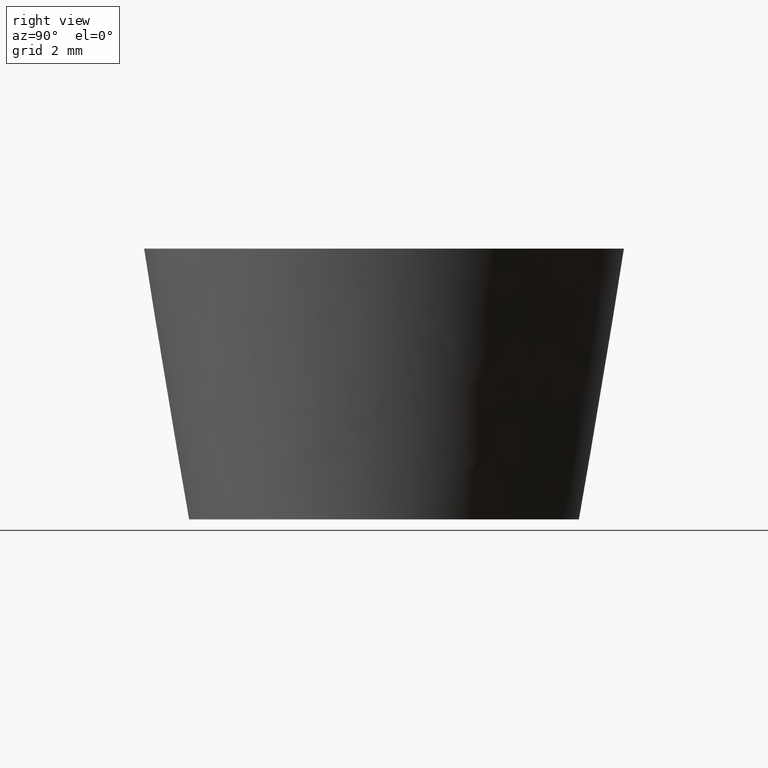
[diagram: clean part render]
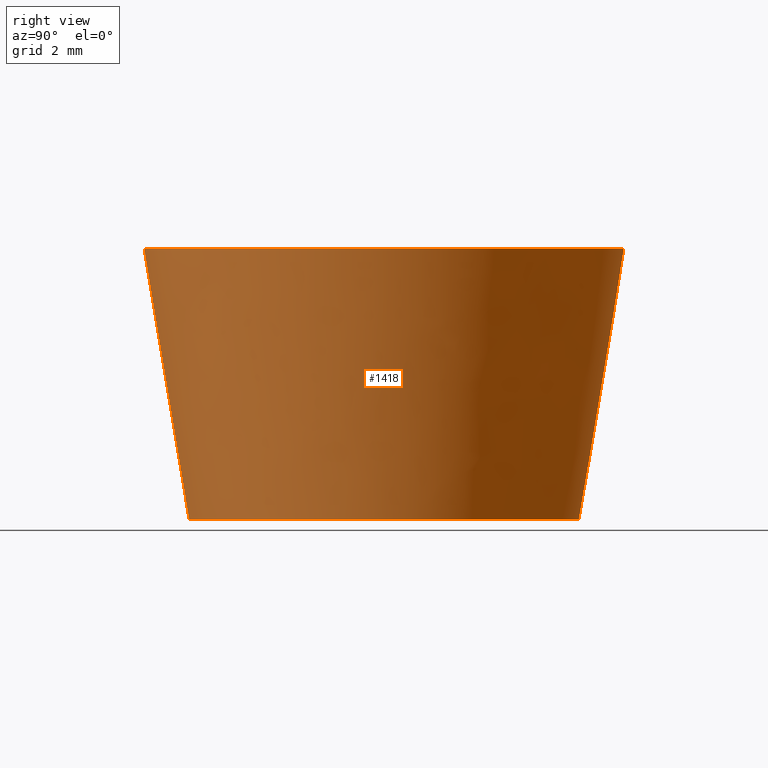
[diagram: same view with one face highlighted and labeled with its STEP entity id]
A machine part, right view. The second image highlights one B-rep face of the part: STEP entity #1418.
In plain terms, the highlighted face is a freeform B-spline surface patch.
Its self-contained STEP definition (entity closure, byte-faithful):
#1257=CARTESIAN_POINT('',(-0.509981792838668,6.479962686144105,-0.000000995606649));
#1258=VERTEX_POINT('',#1257);
#1272=CARTESIAN_POINT('',(0.509981792838667,-6.479962686144106,-0.000000995606649));
#1273=VERTEX_POINT('',#1272);
#1289=CARTESIAN_POINT('',(0.627668152986764,-7.975338694635298,8.999997976665732));
#1290=VERTEX_POINT('',#1289);
#1291=CARTESIAN_POINT('',(0.509981792838667,-6.479962686144106,-0.000000995606649));
#1292=CARTESIAN_POINT('',(0.627668152986764,-7.975338694635298,8.999997976665732));
#1293=QUASI_UNIFORM_CURVE('',1,(#1291,#1292),.UNSPECIFIED.,.F.,.U.);
#1294=EDGE_CURVE('',#1273,#1290,#1293,.T.);
#1313=CARTESIAN_POINT('',(-0.627668152986764,7.975338694635298,8.999997976665730));
#1314=VERTEX_POINT('',#1313);
#1328=CARTESIAN_POINT('',(-0.509981792838668,6.479962686144105,-0.000000995606649));
#1329=CARTESIAN_POINT('',(-0.627668152986764,7.975338694635298,8.999997976665730));
#1330=QUASI_UNIFORM_CURVE('',1,(#1328,#1329),.UNSPECIFIED.,.F.,.U.);
#1331=EDGE_CURVE('',#1258,#1314,#1330,.T.);
#1336=CARTESIAN_POINT('',(0.507041906141202,-6.442578269250335,-0.225000000000000));
#1337=CARTESIAN_POINT('',(6.949620175391537,-5.935536363109133,-0.225000000000000));
#1338=CARTESIAN_POINT('',(6.442578269250335,0.507041906141202,-0.225000000000000));
#1339=CARTESIAN_POINT('',(5.935536363109133,6.949620175391537,-0.225000000000000));
#1340=CARTESIAN_POINT('',(-0.507041906141202,6.442578269250335,-0.225000000000000));
#1341=CARTESIAN_POINT('',(0.630688537314803,-8.013657679880389,9.230625000000003));
#1342=CARTESIAN_POINT('',(8.644346217195192,-7.382969142565585,9.230625000000003));
#1343=CARTESIAN_POINT('',(8.013657679880389,0.630688537314803,9.230625000000003));
#1344=CARTESIAN_POINT('',(7.382969142565585,8.644346217195192,9.230625000000003));
#1345=CARTESIAN_POINT('',(-0.630688537314803,8.013657679880389,9.230625000000003));
#1353=(BOUNDED_SURFACE()B_SPLINE_SURFACE(2,1,((#1336,#1341),(#1337,#1342),(#1338,#1343),(#1339,#1344),(#1340,#1345)),.UNSPECIFIED.,.F.,.F.,.U.)B_SPLINE_SURFACE_WITH_KNOTS((3,2,3),(2,2),(0.0,13.318519331153899,26.637038662307809),(0.0,9.586053575091857),.UNSPECIFIED.)GEOMETRIC_REPRESENTATION_ITEM()RATIONAL_B_SPLINE_SURFACE(((1.0,1.0),(0.707106781186548,0.707106781186548),(1.0,1.0),(0.707106781186548,0.707106781186548),(1.0,1.0)))REPRESENTATION_ITEM('')SURFACE());
#1354=CARTESIAN_POINT('',(6.500000000000000,0.0,0.0));
#1355=VERTEX_POINT('',#1354);
#1356=CARTESIAN_POINT('',(-0.509981792838668,6.479962686144105,-0.000000995606649));
#1357=CARTESIAN_POINT('',(-0.255384519205838,6.499999837580685,-0.000000977526806));
#1358=CARTESIAN_POINT('',(0.000000012526860,6.499999840830420,-0.000000957968149));
#1359=CARTESIAN_POINT('',(6.500000006017340,6.499999923542092,-0.000000460164825));
#1360=CARTESIAN_POINT('',(6.500000000000000,0.0,0.0));
#1368=(BOUNDED_CURVE()B_SPLINE_CURVE(2,(#1356,#1357,#1358,#1359,#1360),.UNSPECIFIED.,.F.,.U.)B_SPLINE_CURVE_WITH_KNOTS((3,2,3),(0.236331361911381,0.250000000000000,0.500000000000000),.UNSPECIFIED.)CURVE()GEOMETRIC_REPRESENTATION_ITEM()RATIONAL_B_SPLINE_CURVE((0.969723484055643,0.983986194373713,1.0,0.707106781186547,1.0))REPRESENTATION_ITEM(''));
#1369=EDGE_CURVE('',#1258,#1355,#1368,.T.);
#1370=ORIENTED_EDGE('',*,*,#1369,.F.);
#1371=ORIENTED_EDGE('',*,*,#1331,.T.);
#1372=CARTESIAN_POINT('',(8.0,0.0,9.0));
#1373=VERTEX_POINT('',#1372);
#1374=CARTESIAN_POINT('',(-0.627668152986764,7.975338694635298,8.999997976665730));
#1375=CARTESIAN_POINT('',(-0.314318526252902,7.999999669920794,8.999998013408625));
#1376=CARTESIAN_POINT('',(0.000000025457839,7.999999676525102,8.999998053156844));
#1377=CARTESIAN_POINT('',(8.000000012228803,7.999999844617188,8.999999064823982));
#1378=CARTESIAN_POINT('',(8.0,0.0,9.0));
#1386=(BOUNDED_CURVE()B_SPLINE_CURVE(2,(#1374,#1375,#1376,#1377,#1378),.UNSPECIFIED.,.F.,.U.)B_SPLINE_CURVE_WITH_KNOTS((3,2,3),(0.236331399213855,0.250000000000000,0.500000000000000),.UNSPECIFIED.)CURVE()GEOMETRIC_REPRESENTATION_ITEM()RATIONAL_B_SPLINE_CURVE((0.969723561903117,0.983986238076280,1.0,0.707106781186548,1.0))REPRESENTATION_ITEM(''));
#1387=EDGE_CURVE('',#1314,#1373,#1386,.T.);
#1388=ORIENTED_EDGE('',*,*,#1387,.T.);
#1389=CARTESIAN_POINT('',(8.0,0.0,9.0));
#1390=CARTESIAN_POINT('',(7.999999986770965,-7.395128031038687,8.999998988332864));
#1391=CARTESIAN_POINT('',(0.627668152986764,-7.975338694635298,8.999997976665732));
#1399=(BOUNDED_CURVE()B_SPLINE_CURVE(2,(#1389,#1390,#1391),.UNSPECIFIED.,.F.,.U.)B_SPLINE_CURVE_WITH_KNOTS((3,3),(0.500000000000000,0.736331399213855),.UNSPECIFIED.)CURVE()GEOMETRIC_REPRESENTATION_ITEM()RATIONAL_B_SPLINE_CURVE((1.0,0.723120543110268,0.969723561903117))REPRESENTATION_ITEM(''));
#1400=EDGE_CURVE('',#1373,#1290,#1399,.T.);
#1401=ORIENTED_EDGE('',*,*,#1400,.T.);
#1402=ORIENTED_EDGE('',*,*,#1294,.F.);
#1403=CARTESIAN_POINT('',(6.500000000000000,0.0,0.0));
#1404=CARTESIAN_POINT('',(6.499999993490482,-6.008540267563155,-0.000000497803324));
#1405=CARTESIAN_POINT('',(0.509981792838667,-6.479962686144106,-0.000000995606649));
#1413=(BOUNDED_CURVE()B_SPLINE_CURVE(2,(#1403,#1404,#1405),.UNSPECIFIED.,.F.,.U.)B_SPLINE_CURVE_WITH_KNOTS((3,3),(0.500000000000000,0.736331361911381),.UNSPECIFIED.)CURVE()GEOMETRIC_REPRESENTATION_ITEM()RATIONAL_B_SPLINE_CURVE((1.0,0.723120586812835,0.969723484055643))REPRESENTATION_ITEM(''));
#1414=EDGE_CURVE('',#1355,#1273,#1413,.T.);
#1415=ORIENTED_EDGE('',*,*,#1414,.F.);
#1416=EDGE_LOOP('',(#1370,#1371,#1388,#1401,#1402,#1415));
#1417=FACE_OUTER_BOUND('',#1416,.T.);
#1418=ADVANCED_FACE('',(#1417),#1353,.T.);